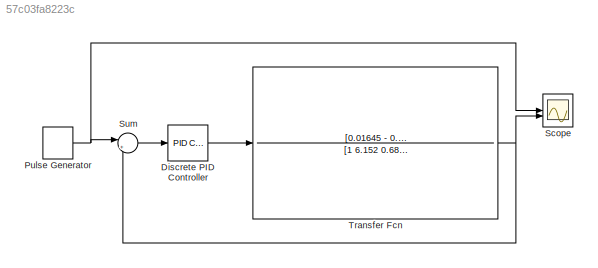
MODEL slx_57c03fa8223c
KIND model
CONFIG AbsTol = auto
CONFIG EnableMultiTasking = off
CONFIG FixedStep = auto
CONFIG MaxStep = auto
CONFIG MinStep = auto
CONFIG RelTol = 1e-3
CONFIG SampleTimeConstraint = Unconstrained
CONFIG SolverName = VariableStepAuto
CONFIG StartTime = 0.0
CONFIG StopTime = 25
BLOCK [Reference] Discrete PID Controller  REF=slpidlib/PID Controller
  LibrarySourceBlock = simulink/Discrete/Discrete PID Controller
  SourceBlock = slpidlib/PID Controller
  SourceType = PID 1dof
BLOCK [DiscretePulseGenerator] Pulse Generator
  Amplitude = 2
  Period = 24.6
  PulseType = Time based
  PulseWidth = 33
BLOCK [Scope] Scope
  Floating = off
  NumInputPorts = 2
  ScopeSpecificationString = Simulink.scopes.TimeScopeBlockCfg('CurrentConfiguration', extmgr.ConfigurationSet(extmgr.Configuration('Core','General UI',true),extmgr.Configuration('Core','Source UI',true),extmgr.Configuration('Sources','WiredSimulink',true),extmgr.Configuration('Visuals','Time Domain',true,'SerializedDisplays',{struct('MinYLimReal','-0.33886','MaxYLimReal','2.25987','YLabelReal','','MinYLimMag','0.00000','MaxY...<+1379ch>
BLOCK [Sum] Sum
  Inputs = |+-
BLOCK [TransferFcn] Transfer Fcn
  Denominator = [1 6.152 0.6814 3.634e-12]
  Numerator = [0.01645 - 0.001026 0.01059]
LINE Discrete PID Controller:1 -> Transfer Fcn:1
NET Pulse Generator:1 -> Scope:1, Sum:1
LINE Sum:1 -> Discrete PID Controller:1
NET Transfer Fcn:1 -> Scope:2, Sum:2
note: NET lines group one-source signal fan-out (src -> all destinations, sorted); 1:1 wires keep LINE
